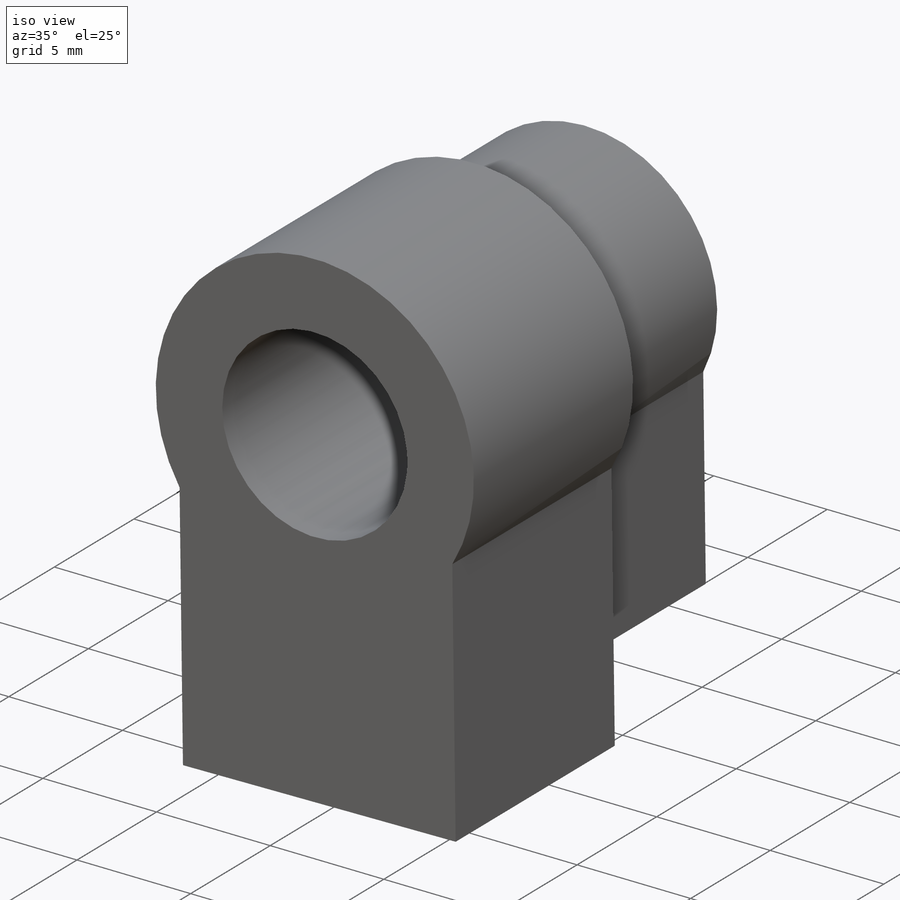
[diagram: iso view]
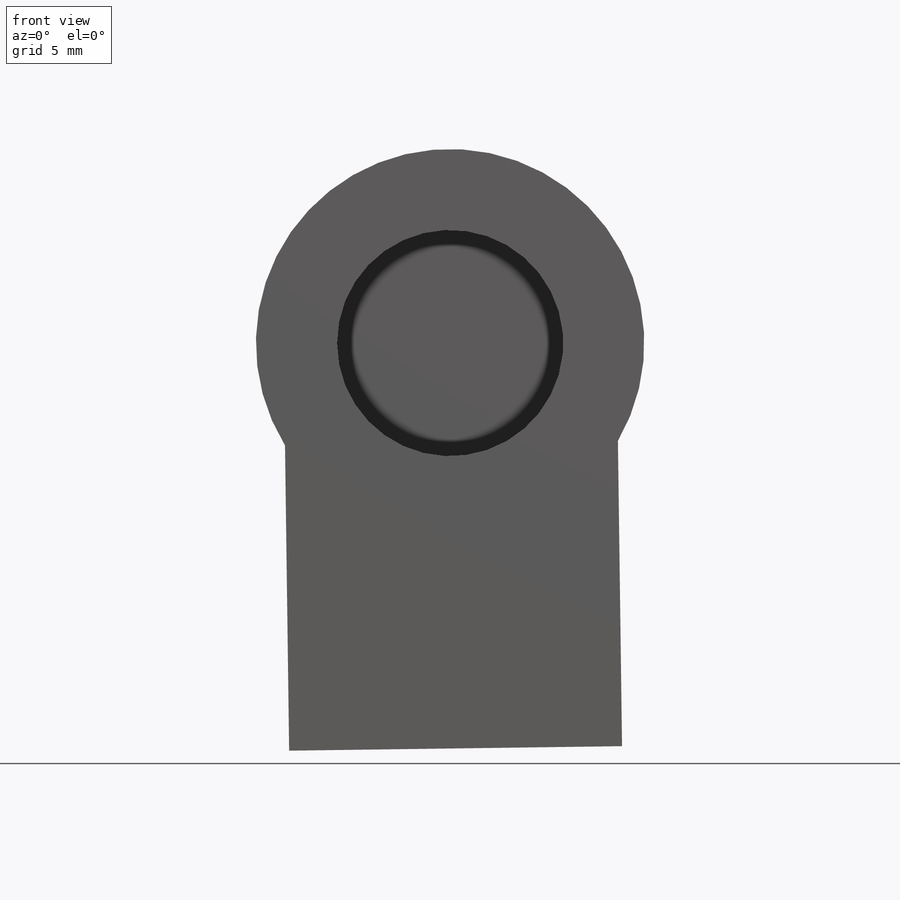
[diagram: front view]
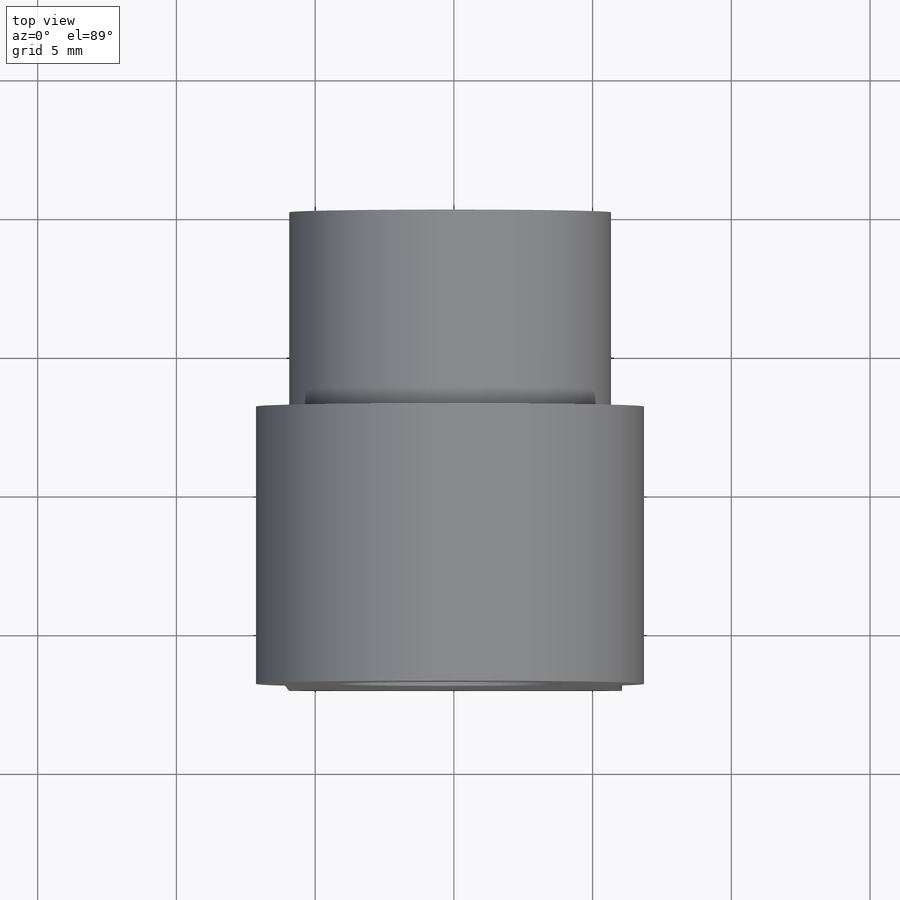
[diagram: top view]
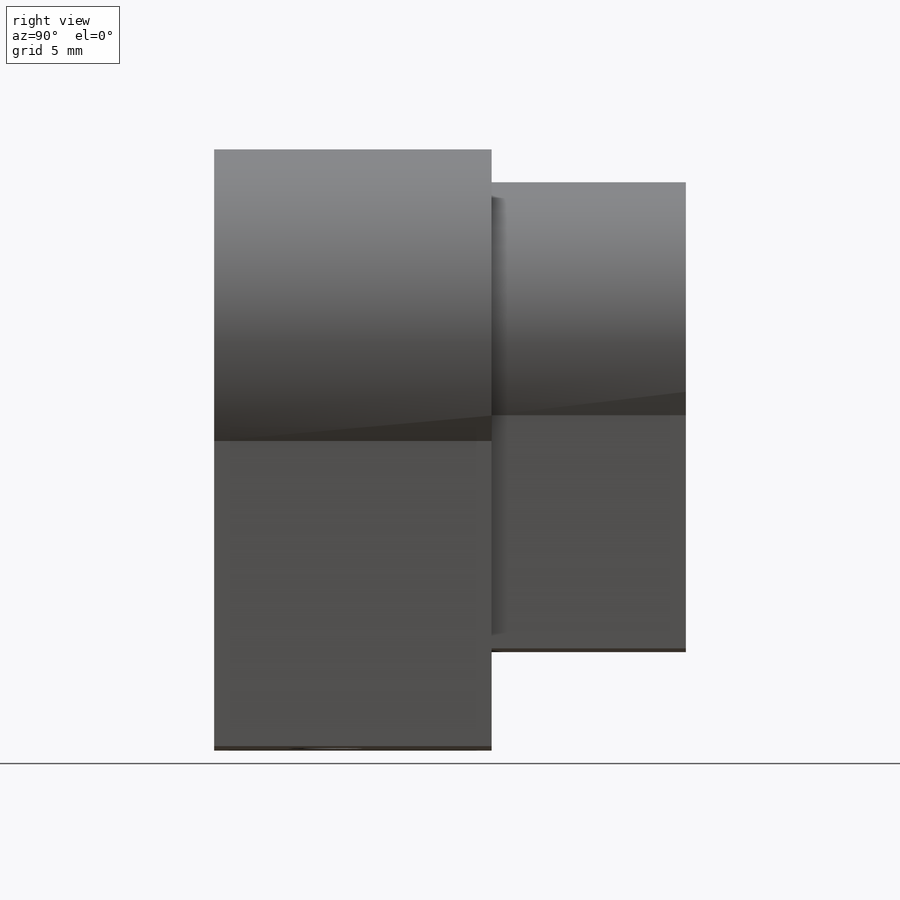
[diagram: right view]
SOLIDWORKS PART (.sldprt)
format: sldprt  version: not decoded by parser v0  size: 351,744 bytes
history: native  units: mm
features: sketch x3, extrude x2, material x1, cut_extrude x1 (+13 scaffold rows collapsed)
feature tree (20):
  scaffold x13  (default folders/planes/origin — collapsed)
  material  "Material <not specified>"
  sketch  "Sketch1"  dims[D1=0.0mm D2=5.8mm D3=5.8mm D4=10.3mm D5=8.4mm]
  extrude  "Boss-Extrude1"  Depth=7mm
  sketch  "Sketch2"  dims[c1.D1=~12.97428mm c1.D2=14.0mm c1.D3=~7.693134mm c1.D4=8.15mm c2.D1=0.0mm c2.D3=0.0mm c2.D5=7.0mm c2.D6=7.0mm c2.D7=12.0mm c2.D8=~11.532805mm c3.D8=180.0deg c3.D9=11.0mm]
  extrude  "Boss-Extrude3"  Depth=10mm
  sketch  "Sketch6"  dims[D2=2.7mm D1=4.0mm]
  cut_extrude  "Cut-Extrude3"  Depth=8.5mm
decode coverage: 6 of 6 modeling features carry decoded parameters
note: ~ marks probable driven/reference dimensions
note: suppression state not decoded; provenance and decode notes live in map.json
